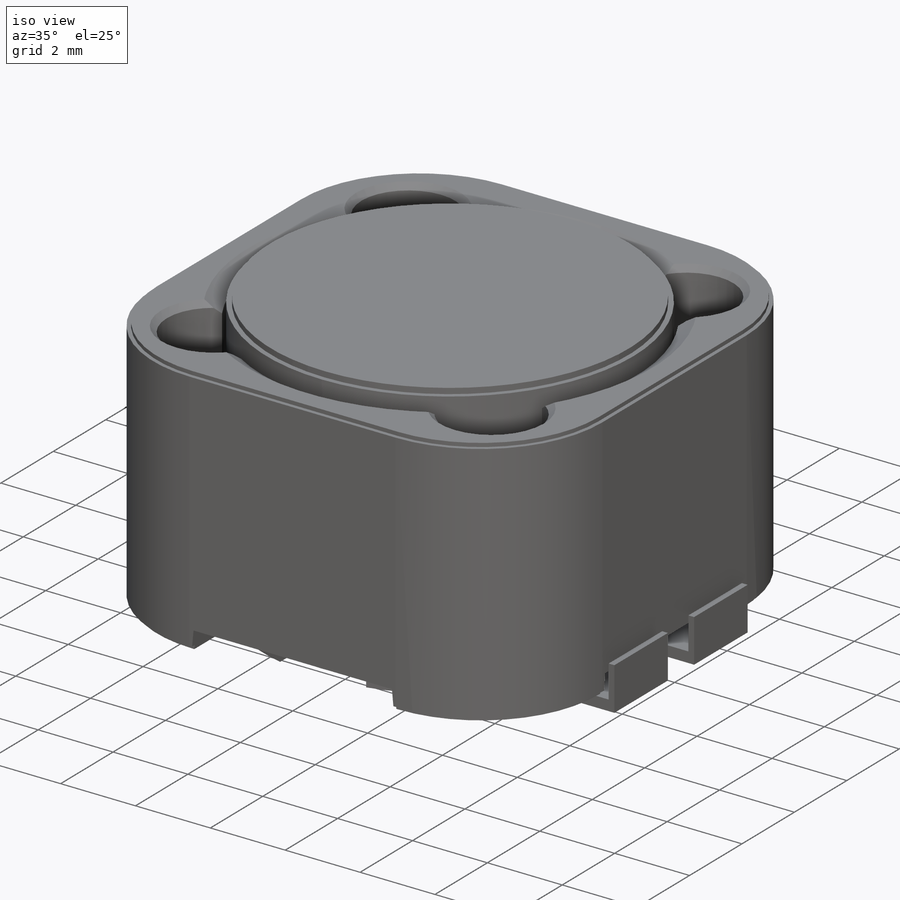
[diagram: iso view]
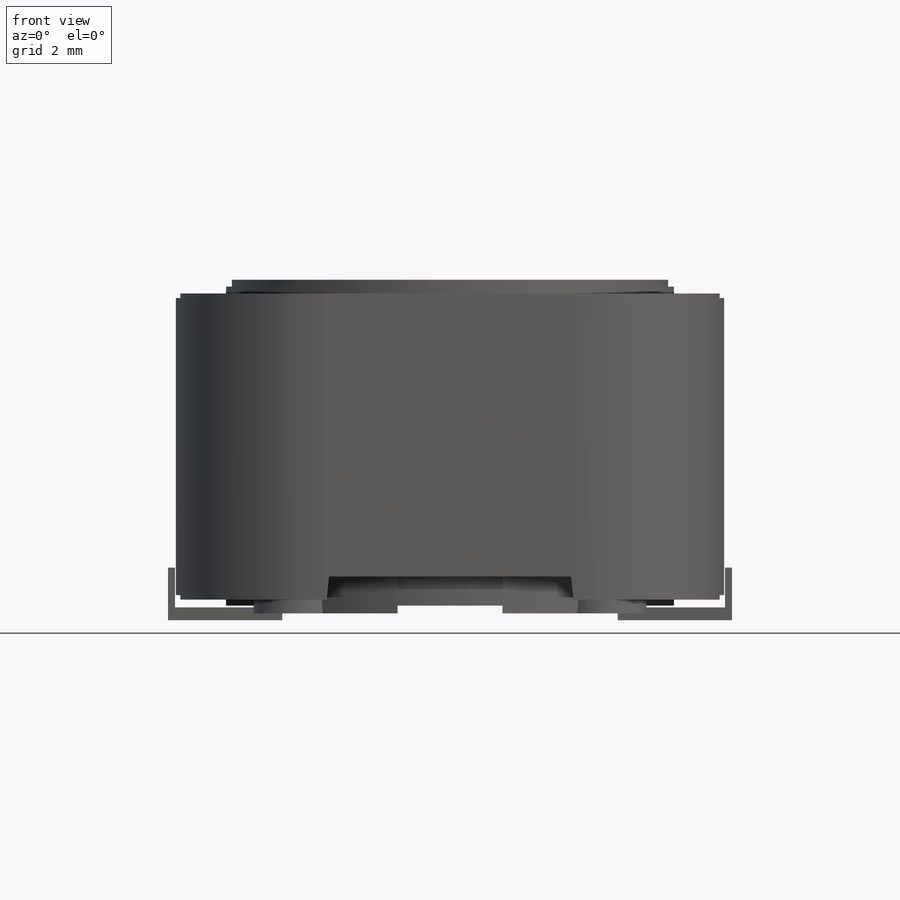
[diagram: front view]
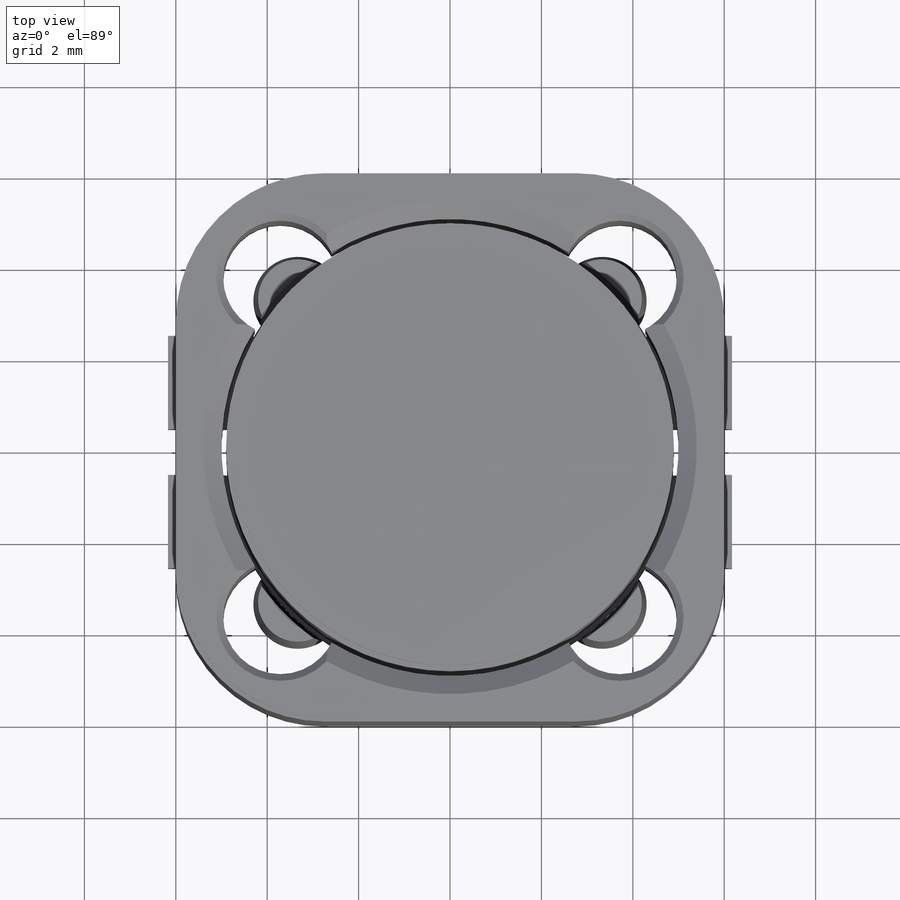
[diagram: top view]
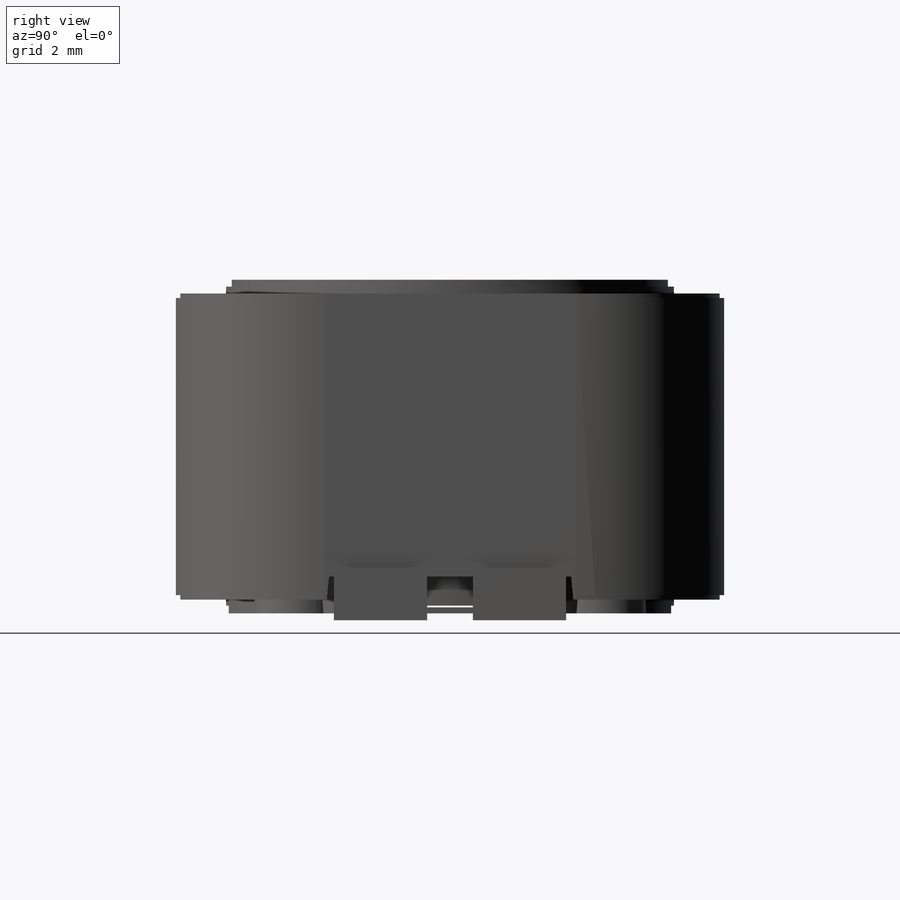
[diagram: right view]
SOLIDWORKS PART (.sldprt)
format: sldprt  version: not decoded by parser v0  size: 791,040 bytes
history: native  units: mm
features: sketch x14, cut_extrude x7, extrude x5, mirror x4, chamfer x3, material x1, plane x1, boolean_combine x1 (+12 scaffold rows collapsed)
feature tree (48):
  scaffold x12  (default folders/planes/origin — collapsed)
  material  "材质 <未指定>"
  sketch  "Sketch1"  dims[c1.D3=10.5mm c1.D4=10.0mm c1.D5=9.8mm c1.D7=3.25mm c1.D9=3.5mm c1.D6=~1.15507mm c2.D3=1.5mm c2.D1=12.0mm c2.D2=12.0mm c2.D6=0.25mm c2.D8=0.25mm]
  extrude  "Boss-Extrude1"  Depth=7mm
  extrude  "Boss-Extrude2"  [1 undecoded]
  sketch  "Sketch1<3>"  dims[D1=6.7mm]
  sketch  "Sketch2"  dims[D1=0.1mm]
  chamfer  "Chamfer1"  Distance=0.4mm Angle=35deg
  chamfer  "Chamfer2"  Distance=0.15mm Angle=45deg
  sketch  "Sketch3"  dims[D1=9.55mm D2=9.8mm]
  cut_extrude  "Cut-Extrude1"  Depth=0.15mm
  chamfer  "Chamfer3"  Distance=0.1mm Angle=45deg
  cut_extrude  "Cut-Extrude2"  Depth=0.1mm
  sketch  "Sketch5"
  cut_extrude  "Cut-Extrude3"  Depth=0.1mm
  plane  "Plane1"  Offset=0.3mm
  sketch  "Sketch7"  dims[c1.D1=4.98mm c1.D3=0.1mm c1.D4=2.5mm c2.D1=1.15mm c2.D2=1.15mm c2.D5=0.5mm c2.D6=0.5mm c2.D7=2.5mm c2.D8=2.5mm]
  sketch  "Sketch8"  dims[c1.D1=0.5mm c1.D2=0.5mm c1.D3=2.65mm c1.D4=0.5mm c2.D4=11.0deg c2.D2=5.3mm c2.D5=~5.396289mm c3.D2=2.65mm c3.D3=2.65mm]
  cut_extrude  "Cut-Extrude4"  [1 undecoded]
  mirror  "Mirror1"
  sketch  "Sketch9"  dims[D1=0.5mm D2=2.65mm]
  cut_extrude  "Cut-Extrude5"  [1 undecoded]
  mirror  "Mirror2"
  extrude  "Boss-Extrude3"  Depth=1.3mm
  extrude  "Boss-Extrude4"  [1 undecoded]
  sketch  "Sketch7<3>"  dims[D1=1.0mm D2=0.15mm]
  sketch  "Sketch10"  dims[D1=~4.871854mm]
  cut_extrude  "Cut-Extrude6"  Depth=1.17mm
  boolean_combine  "Combine1"
  mirror  "Mirror3"
  extrude  "Boss-Extrude5"  [1 undecoded]
  sketch  "Sketch7<5>"  dims[D1=3.0mm D3=2.0deg]
  sketch  "Sketch12"
  mirror  "Mirror4"
  sketch  "Sketch13"
  cut_extrude  "Cut-Extrude7"  [1 undecoded]
  sketch  "Sketch17"
decode coverage: 19 of 34 modeling features carry decoded parameters
note: ~ marks probable driven/reference dimensions
note: 6 parameter values undecoded
summary: no parameter record found for 6 features
note: suppression state not decoded; provenance and decode notes live in map.json
